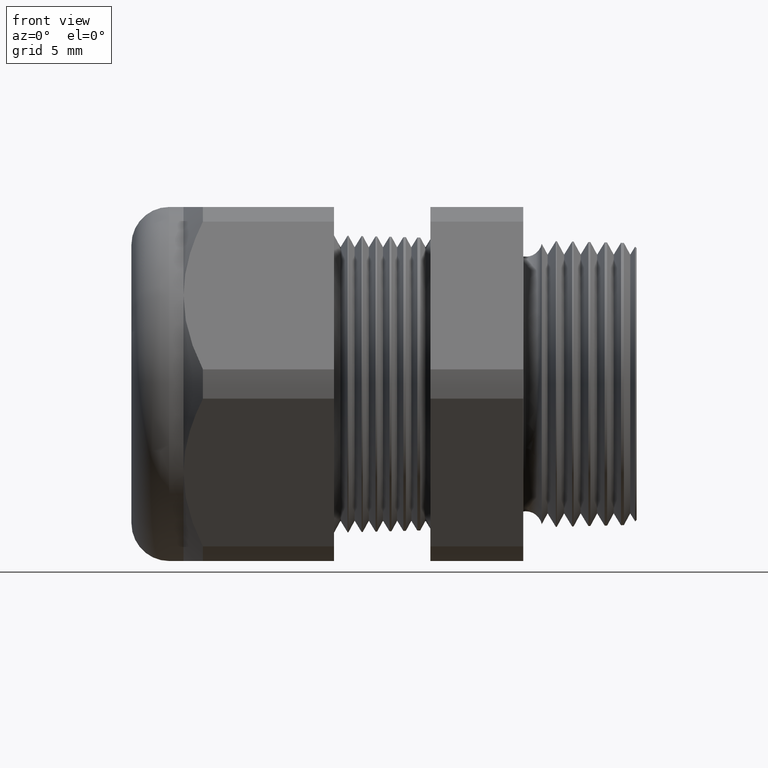
[diagram: clean part render]
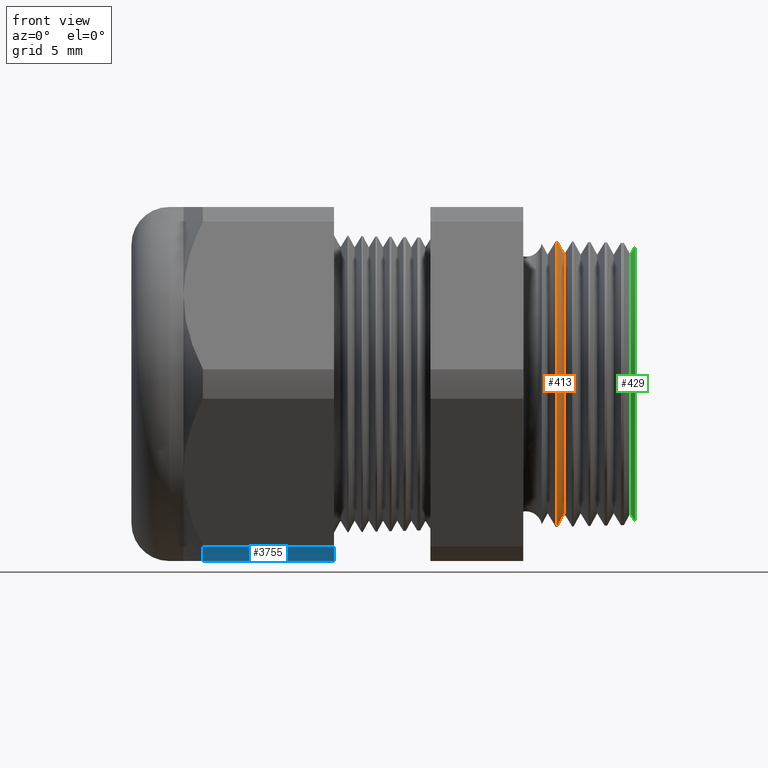
[diagram: same view with three faces highlighted in distinct colors, each labeled with its STEP entity id]
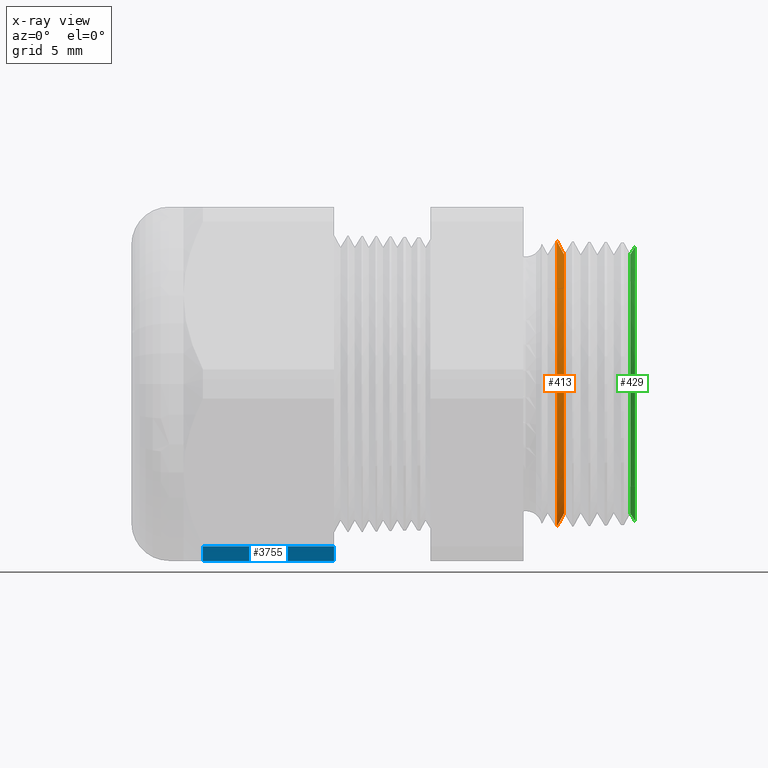
[diagram: x-ray of the same camera — body ghosted, the three highlighted faces saturated]
A machine part, front view with three faces highlighted in distinct colors.
The next image is the same camera in x-ray (body ghosted, the three faces saturated) — at least one of them is partly hidden behind the body in this view.
Their STEP definitions:

[orange] entity #413 — the highlighted conical surface has half-angle 61.5 deg.
#15 = EDGE_CURVE ( 'NONE', #676, #682, #1161, .T. ) ;
#413 = ADVANCED_FACE ( 'NONE', ( #1755 ), #1750, .T. ) ;
#414 = EDGE_LOOP ( 'NONE', ( #415, #416, #418, #419 ) ) ;
#415 = ORIENTED_EDGE ( 'NONE', *, *, #673, .F. ) ;
#416 = ORIENTED_EDGE ( 'NONE', *, *, #417, .F. ) ;
#417 = EDGE_CURVE ( 'NONE', #724, #723, #1749, .T. ) ;
#418 = ORIENTED_EDGE ( 'NONE', *, *, #691, .T. ) ;
#419 = ORIENTED_EDGE ( 'NONE', *, *, #15, .T. ) ;
#673 = EDGE_CURVE ( 'NONE', #723, #682, #2256, .T. ) ;
#676 = VERTEX_POINT ( 'NONE', #2247 ) ;
#682 = VERTEX_POINT ( 'NONE', #2236 ) ;
#691 = EDGE_CURVE ( 'NONE', #724, #676, #2290, .T. ) ;
#723 = VERTEX_POINT ( 'NONE', #2292 ) ;
#724 = VERTEX_POINT ( 'NONE', #2291 ) ;
#1157 = DIRECTION ( 'NONE',  ( 0.0000000000000000000, 0.0000000000000000000, 1.000000000000000000 ) ) ;
#1158 = DIRECTION ( 'NONE',  ( 1.000000000000000000, 0.0000000000000000000, 0.0000000000000000000 ) ) ;
#1159 = CARTESIAN_POINT ( 'NONE',  ( -0.2389904000387095000, 0.0000000000000000000, 0.0000000000000000000 ) ) ;
#1160 = AXIS2_PLACEMENT_3D ( 'NONE', #1159, #1158, #1157 ) ;
#1161 = CIRCLE ( 'NONE', #1160, 0.3026434988376135400 ) ;
#1745 = DIRECTION ( 'NONE',  ( 0.0000000000000000000, 0.0000000000000000000, 1.000000000000000000 ) ) ;
#1746 = DIRECTION ( 'NONE',  ( -1.000000000000000000, 0.0000000000000000000, 0.0000000000000000000 ) ) ;
#1747 = CARTESIAN_POINT ( 'NONE',  ( -0.2399999999999999600, 0.0000000000000000000, 0.0000000000000000000 ) ) ;
#1748 = AXIS2_PLACEMENT_3D ( 'NONE', #1747, #1746, #1745 ) ;
#1749 = CIRCLE ( 'NONE', #1810, 0.2740598328590288000 ) ;
#1750 = CONICAL_SURFACE ( 'NONE', #1748, 0.3045029506528588200, 1.073377489976501000 ) ;
#1755 = FACE_OUTER_BOUND ( 'NONE', #414, .T. ) ;
#1807 = DIRECTION ( 'NONE',  ( 0.0000000000000000000, 0.0000000000000000000, -1.000000000000000000 ) ) ;
#1808 = DIRECTION ( 'NONE',  ( 1.000000000000000000, 0.0000000000000000000, 0.0000000000000000000 ) ) ;
#1809 = CARTESIAN_POINT ( 'NONE',  ( -0.2234707356790751900, 0.0000000000000000000, 0.0000000000000000000 ) ) ;
#1810 = AXIS2_PLACEMENT_3D ( 'NONE', #1809, #1808, #1807 ) ;
#2236 = CARTESIAN_POINT ( 'NONE',  ( -0.2389904000387095000, 3.706623898828752500E-017, -0.3026434988376135400 ) ) ;
#2247 = CARTESIAN_POINT ( 'NONE',  ( -0.2389904000387095000, 0.0000000000000000000, 0.3026434988376135400 ) ) ;
#2253 = DIRECTION ( 'NONE',  ( -0.4771587602596187900, 1.076240564057388000E-016, -0.8788171126619597200 ) ) ;
#2254 = VECTOR ( 'NONE', #2253, 39.37007874015748900 ) ;
#2255 = CARTESIAN_POINT ( 'NONE',  ( -0.2399999999999999600, 3.729085638479479300E-017, -0.3045029506528588200 ) ) ;
#2256 = LINE ( 'NONE', #2255, #2254 ) ;
#2287 = DIRECTION ( 'NONE',  ( -0.4771587602596187900, 0.0000000000000000000, 0.8788171126619597200 ) ) ;
#2288 = VECTOR ( 'NONE', #2287, 39.37007874015748900 ) ;
#2289 = CARTESIAN_POINT ( 'NONE',  ( -0.2399999999999999600, 0.0000000000000000000, 0.3045029506528588200 ) ) ;
#2290 = LINE ( 'NONE', #2289, #2288 ) ;
#2291 = CARTESIAN_POINT ( 'NONE',  ( -0.2234707356790751900, 0.0000000000000000000, 0.2740598328590288000 ) ) ;
#2292 = CARTESIAN_POINT ( 'NONE',  ( -0.2234707356790751900, 3.531289446099536400E-017, -0.2740598328590288000 ) ) ;

[blue] entity #3755 — the highlighted cylindrical surface (partial cylindrical patch) has radius 10.5727 mm, axis along (-1, 0, 0).
#3385 = FACE_OUTER_BOUND ( 'NONE', #3763, .T. ) ;
#3386 = DIRECTION ( 'NONE',  ( 0.0000000000000000000, 0.0000000000000000000, -1.000000000000000000 ) ) ;
#3387 = DIRECTION ( 'NONE',  ( 1.000000000000000000, 0.0000000000000000000, 0.0000000000000000000 ) ) ;
#3388 = CARTESIAN_POINT ( 'NONE',  ( -0.9885137795275589200, 0.0000000000000000000, 0.0000000000000000000 ) ) ;
#3389 = AXIS2_PLACEMENT_3D ( 'NONE', #3388, #3387, #3386 ) ;
#3390 = CIRCLE ( 'NONE', #3389, 0.4162499999999999500 ) ;
#3428 = CARTESIAN_POINT ( 'NONE',  ( -0.7108661417322830200, -0.2344281053908200400, -0.3439586107409880500 ) ) ;
#3429 = DIRECTION ( 'NONE',  ( -1.000000000000000000, 0.0000000000000000000, 0.0000000000000000000 ) ) ;
#3430 = VECTOR ( 'NONE', #3429, 39.37007874015748100 ) ;
#3431 = CARTESIAN_POINT ( 'NONE',  ( -0.06999999999999993700, -0.2344281053908200400, -0.3439586107409880500 ) ) ;
#3432 = LINE ( 'NONE', #3431, #3430 ) ;
#3433 = CARTESIAN_POINT ( 'NONE',  ( -0.9885137795275589200, -0.2344281053908200400, -0.3439586107409880500 ) ) ;
#3438 = DIRECTION ( 'NONE',  ( 0.0000000000000000000, 0.0000000000000000000, 1.000000000000000000 ) ) ;
#3439 = DIRECTION ( 'NONE',  ( -1.000000000000000000, 0.0000000000000000000, 0.0000000000000000000 ) ) ;
#3440 = CARTESIAN_POINT ( 'NONE',  ( -0.06999999999999993700, 0.0000000000000000000, 0.0000000000000000000 ) ) ;
#3441 = AXIS2_PLACEMENT_3D ( 'NONE', #3440, #3439, #3438 ) ;
#3442 = CYLINDRICAL_SURFACE ( 'NONE', #3441, 0.4162499999999999500 ) ;
#3454 = CARTESIAN_POINT ( 'NONE',  ( -0.9885137795275590300, -0.1806628420566884800, -0.3749999999999999400 ) ) ;
#3486 = CARTESIAN_POINT ( 'NONE',  ( -0.7108661417322830200, -0.1806628420566884200, -0.3749999999999999400 ) ) ;
#3487 = DIRECTION ( 'NONE',  ( -1.000000000000000000, 0.0000000000000000000, 0.0000000000000000000 ) ) ;
#3488 = VECTOR ( 'NONE', #3487, 39.37007874015748100 ) ;
#3489 = CARTESIAN_POINT ( 'NONE',  ( -0.06999999999999993700, -0.1806628420566884200, -0.3749999999999999400 ) ) ;
#3490 = LINE ( 'NONE', #3489, #3488 ) ;
#3491 = DIRECTION ( 'NONE',  ( 0.0000000000000000000, 0.0000000000000000000, -1.000000000000000000 ) ) ;
#3492 = DIRECTION ( 'NONE',  ( 1.000000000000000000, 0.0000000000000000000, 0.0000000000000000000 ) ) ;
#3493 = CARTESIAN_POINT ( 'NONE',  ( -0.7108661417322830200, 0.0000000000000000000, 0.0000000000000000000 ) ) ;
#3494 = AXIS2_PLACEMENT_3D ( 'NONE', #3493, #3492, #3491 ) ;
#3495 = CIRCLE ( 'NONE', #3494, 0.4162499999999999500 ) ;
#3752 = ORIENTED_EDGE ( 'NONE', *, *, #3753, .T. ) ;
#3753 = EDGE_CURVE ( 'NONE', #3759, #3778, #3390, .T. ) ;
#3755 = ADVANCED_FACE ( 'NONE', ( #3385 ), #3442, .T. ) ;
#3757 = ORIENTED_EDGE ( 'NONE', *, *, #3761, .T. ) ;
#3759 = VERTEX_POINT ( 'NONE', #3433 ) ;
#3761 = EDGE_CURVE ( 'NONE', #3764, #3759, #3432, .T. ) ;
#3763 = EDGE_LOOP ( 'NONE', ( #3757, #3752, #3783, #3782 ) ) ;
#3764 = VERTEX_POINT ( 'NONE', #3428 ) ;
#3778 = VERTEX_POINT ( 'NONE', #3454 ) ;
#3779 = EDGE_CURVE ( 'NONE', #3764, #3781, #3495, .T. ) ;
#3780 = EDGE_CURVE ( 'NONE', #3781, #3778, #3490, .T. ) ;
#3781 = VERTEX_POINT ( 'NONE', #3486 ) ;
#3782 = ORIENTED_EDGE ( 'NONE', *, *, #3779, .F. ) ;
#3783 = ORIENTED_EDGE ( 'NONE', *, *, #3780, .F. ) ;

[green] entity #429 — the highlighted conical surface has half-angle 58.5 deg.
#242 = EDGE_CURVE ( 'NONE', #660, #647, #1576, .T. ) ;
#429 = ADVANCED_FACE ( 'NONE', ( #1793 ), #1792, .T. ) ;
#430 = ORIENTED_EDGE ( 'NONE', *, *, #644, .F. ) ;
#431 = ORIENTED_EDGE ( 'NONE', *, *, #450, .T. ) ;
#432 = ORIENTED_EDGE ( 'NONE', *, *, #626, .T. ) ;
#433 = ORIENTED_EDGE ( 'NONE', *, *, #242, .T. ) ;
#450 = EDGE_CURVE ( 'NONE', #589, #585, #1832, .T. ) ;
#452 = EDGE_LOOP ( 'NONE', ( #430, #431, #432, #433 ) ) ;
#585 = VERTEX_POINT ( 'NONE', #2059 ) ;
#589 = VERTEX_POINT ( 'NONE', #2057 ) ;
#626 = EDGE_CURVE ( 'NONE', #585, #660, #2116, .T. ) ;
#644 = EDGE_CURVE ( 'NONE', #589, #647, #2136, .T. ) ;
#647 = VERTEX_POINT ( 'NONE', #2130 ) ;
#660 = VERTEX_POINT ( 'NONE', #2174 ) ;
#1572 = DIRECTION ( 'NONE',  ( 0.0000000000000000000, 0.0000000000000000000, -1.000000000000000000 ) ) ;
#1573 = DIRECTION ( 'NONE',  ( -1.000000000000000000, 0.0000000000000000000, 0.0000000000000000000 ) ) ;
#1574 = CARTESIAN_POINT ( 'NONE',  ( -0.07301462278580277100, 0.0000000000000000000, 0.0000000000000000000 ) ) ;
#1575 = AXIS2_PLACEMENT_3D ( 'NONE', #1574, #1573, #1572 ) ;
#1576 = CIRCLE ( 'NONE', #1575, 0.2911226583247247800 ) ;
#1788 = DIRECTION ( 'NONE',  ( 0.0000000000000000000, 0.0000000000000000000, -1.000000000000000000 ) ) ;
#1789 = DIRECTION ( 'NONE',  ( 1.000000000000000000, 0.0000000000000000000, 0.0000000000000000000 ) ) ;
#1790 = AXIS2_PLACEMENT_3D ( 'NONE', #1798, #1789, #1788 ) ;
#1792 = CONICAL_SURFACE ( 'NONE', #1790, 0.2740598328590288000, 1.021017612416694500 ) ;
#1793 = FACE_OUTER_BOUND ( 'NONE', #452, .T. ) ;
#1798 = CARTESIAN_POINT ( 'NONE',  ( -0.08347073567907516100, 0.0000000000000000000, 0.0000000000000000000 ) ) ;
#1829 = DIRECTION ( 'NONE',  ( 0.0000000000000000000, 0.0000000000000000000, -1.000000000000000000 ) ) ;
#1830 = DIRECTION ( 'NONE',  ( 1.000000000000000000, 0.0000000000000000000, 0.0000000000000000000 ) ) ;
#1831 = AXIS2_PLACEMENT_3D ( 'NONE', #1836, #1830, #1829 ) ;
#1832 = CIRCLE ( 'NONE', #1831, 0.2740598328590288000 ) ;
#1836 = CARTESIAN_POINT ( 'NONE',  ( -0.08347073567907516100, 0.0000000000000000000, 0.0000000000000000000 ) ) ;
#2057 = CARTESIAN_POINT ( 'NONE',  ( -0.08347073567907516100, 0.0000000000000000000, 0.2740598328590288000 ) ) ;
#2059 = CARTESIAN_POINT ( 'NONE',  ( -0.08347073567907516100, 3.508517728962449000E-017, -0.2740598328590288000 ) ) ;
#2113 = DIRECTION ( 'NONE',  ( 0.5224985647159389200, 0.0000000000000000000, -0.8526401643540982800 ) ) ;
#2114 = VECTOR ( 'NONE', #2113, 39.37007874015748100 ) ;
#2115 = CARTESIAN_POINT ( 'NONE',  ( -0.08347073567907516100, 0.0000000000000000000, -0.2740598328590288000 ) ) ;
#2116 = LINE ( 'NONE', #2115, #2114 ) ;
#2130 = CARTESIAN_POINT ( 'NONE',  ( -0.07301462278580277100, 0.0000000000000000000, 0.2911226583247247300 ) ) ;
#2133 = DIRECTION ( 'NONE',  ( 0.5224985647159389200, 1.044183048100719800E-016, 0.8526401643540982800 ) ) ;
#2134 = VECTOR ( 'NONE', #2133, 39.37007874015748100 ) ;
#2135 = CARTESIAN_POINT ( 'NONE',  ( -0.08347073567907516100, 3.356264970856682100E-017, 0.2740598328590288000 ) ) ;
#2136 = LINE ( 'NONE', #2135, #2134 ) ;
#2174 = CARTESIAN_POINT ( 'NONE',  ( -0.07301462278580277100, 3.565224316766427900E-017, -0.2911226583247247300 ) ) ;